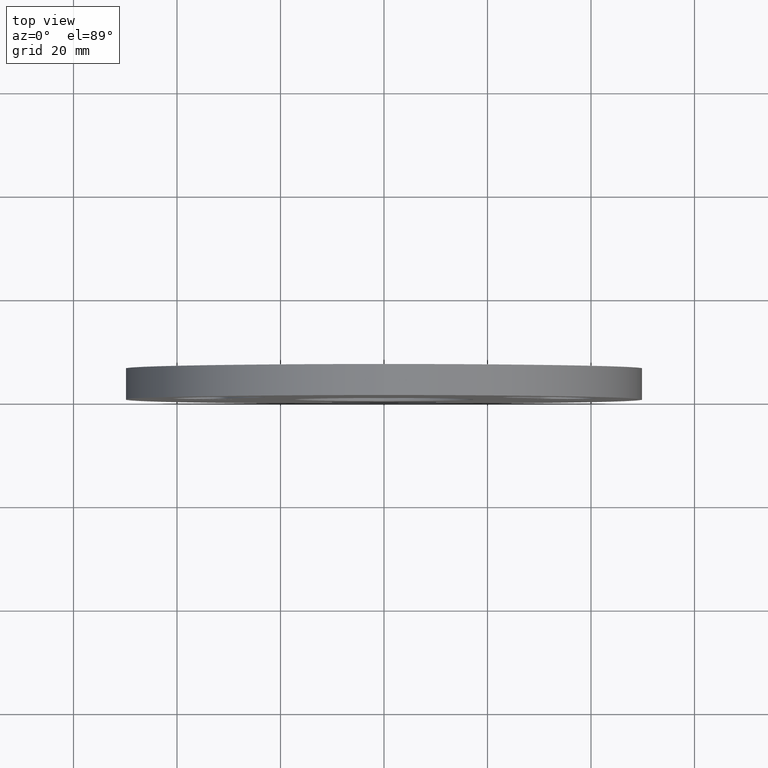
[diagram: clean part render]
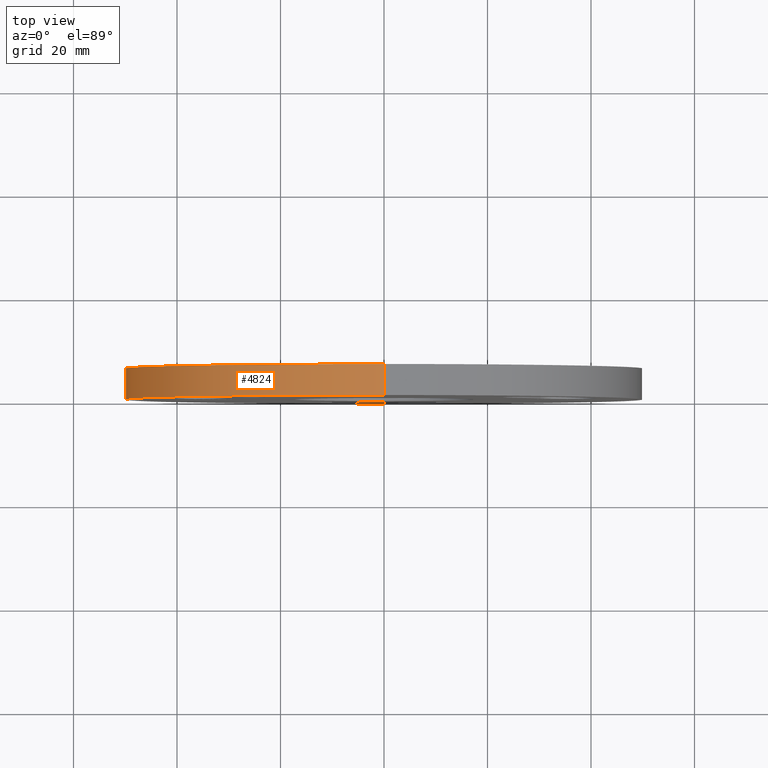
[diagram: same view with one face highlighted and labeled with its STEP entity id]
A machine part, top view. The second image highlights one B-rep face of the part: STEP entity #4824.
In plain terms, the highlighted cylindrical surface (partial cylindrical patch) has radius 50 mm, axis along (-0, -1, -0).
Its self-contained STEP definition (entity closure, byte-faithful):
#262 = ORIENTED_EDGE ( 'NONE', *, *, #5544, .T. ) ;
#507 = CARTESIAN_POINT ( 'NONE',  ( 6.123233995736766085E-15, 6.000000000000000000, 50.00000000000000000 ) ) ;
#1647 = ORIENTED_EDGE ( 'NONE', *, *, #3883, .F. ) ;
#2891 = LINE ( 'NONE', #3137, #5730 ) ;
#3047 = DIRECTION ( 'NONE',  ( -0.000000000000000000, -1.000000000000000000, -0.000000000000000000 ) ) ;
#3082 = LINE ( 'NONE', #9225, #3713 ) ;
#3137 = CARTESIAN_POINT ( 'NONE',  ( 6.123233995736766085E-15, 6.000000000000000000, 50.00000000000000000 ) ) ;
#3138 = AXIS2_PLACEMENT_3D ( 'NONE', #11126, #13148, #5055 ) ;
#3253 = FACE_OUTER_BOUND ( 'NONE', #5194, .T. ) ;
#3713 = VECTOR ( 'NONE', #8156, 1000.000000000000000 ) ;
#3865 = CARTESIAN_POINT ( 'NONE',  ( 0.000000000000000000, 6.000000000000000000, 0.000000000000000000 ) ) ;
#3883 = EDGE_CURVE ( 'NONE', #4516, #5093, #2891, .T. ) ;
#4360 = CIRCLE ( 'NONE', #3138, 50.00000000000000000 ) ;
#4389 = ORIENTED_EDGE ( 'NONE', *, *, #9544, .F. ) ;
#4516 = VERTEX_POINT ( 'NONE', #507 ) ;
#4824 = ADVANCED_FACE ( 'NONE', ( #3253 ), #5460, .T. ) ;
#5055 = DIRECTION ( 'NONE',  ( 0.000000000000000000, 0.000000000000000000, 1.000000000000000000 ) ) ;
#5093 = VERTEX_POINT ( 'NONE', #10826 ) ;
#5194 = EDGE_LOOP ( 'NONE', ( #1647, #4389, #11738, #262 ) ) ;
#5460 = CYLINDRICAL_SURFACE ( 'NONE', #7728, 50.00000000000000000 ) ;
#5544 = EDGE_CURVE ( 'NONE', #6842, #5093, #4360, .T. ) ;
#5730 = VECTOR ( 'NONE', #3047, 1000.000000000000000 ) ;
#6195 = DIRECTION ( 'NONE',  ( 0.000000000000000000, 0.000000000000000000, -1.000000000000000000 ) ) ;
#6236 = CARTESIAN_POINT ( 'NONE',  ( 0.000000000000000000, 6.000000000000000000, 0.000000000000000000 ) ) ;
#6842 = VERTEX_POINT ( 'NONE', #9302 ) ;
#7205 = EDGE_CURVE ( 'NONE', #10106, #6842, #3082, .T. ) ;
#7728 = AXIS2_PLACEMENT_3D ( 'NONE', #6236, #12294, #6195 ) ;
#7852 = DIRECTION ( 'NONE',  ( 0.000000000000000000, 0.000000000000000000, 1.000000000000000000 ) ) ;
#8156 = DIRECTION ( 'NONE',  ( -0.000000000000000000, -1.000000000000000000, -0.000000000000000000 ) ) ;
#8423 = CARTESIAN_POINT ( 'NONE',  ( 0.000000000000000000, 6.000000000000000000, -50.00000000000000000 ) ) ;
#9004 = DIRECTION ( 'NONE',  ( 0.000000000000000000, 1.000000000000000000, 0.000000000000000000 ) ) ;
#9225 = CARTESIAN_POINT ( 'NONE',  ( 0.000000000000000000, 6.000000000000000000, -50.00000000000000000 ) ) ;
#9302 = CARTESIAN_POINT ( 'NONE',  ( 0.000000000000000000, 0.000000000000000000, -50.00000000000000000 ) ) ;
#9544 = EDGE_CURVE ( 'NONE', #10106, #4516, #10188, .T. ) ;
#10106 = VERTEX_POINT ( 'NONE', #8423 ) ;
#10188 = CIRCLE ( 'NONE', #10204, 50.00000000000000000 ) ;
#10204 = AXIS2_PLACEMENT_3D ( 'NONE', #3865, #9004, #7852 ) ;
#10826 = CARTESIAN_POINT ( 'NONE',  ( 6.123233995736766085E-15, 0.000000000000000000, 50.00000000000000000 ) ) ;
#11126 = CARTESIAN_POINT ( 'NONE',  ( 0.000000000000000000, 0.000000000000000000, 0.000000000000000000 ) ) ;
#11738 = ORIENTED_EDGE ( 'NONE', *, *, #7205, .T. ) ;
#12294 = DIRECTION ( 'NONE',  ( -0.000000000000000000, -1.000000000000000000, -0.000000000000000000 ) ) ;
#13148 = DIRECTION ( 'NONE',  ( 0.000000000000000000, 1.000000000000000000, 0.000000000000000000 ) ) ;